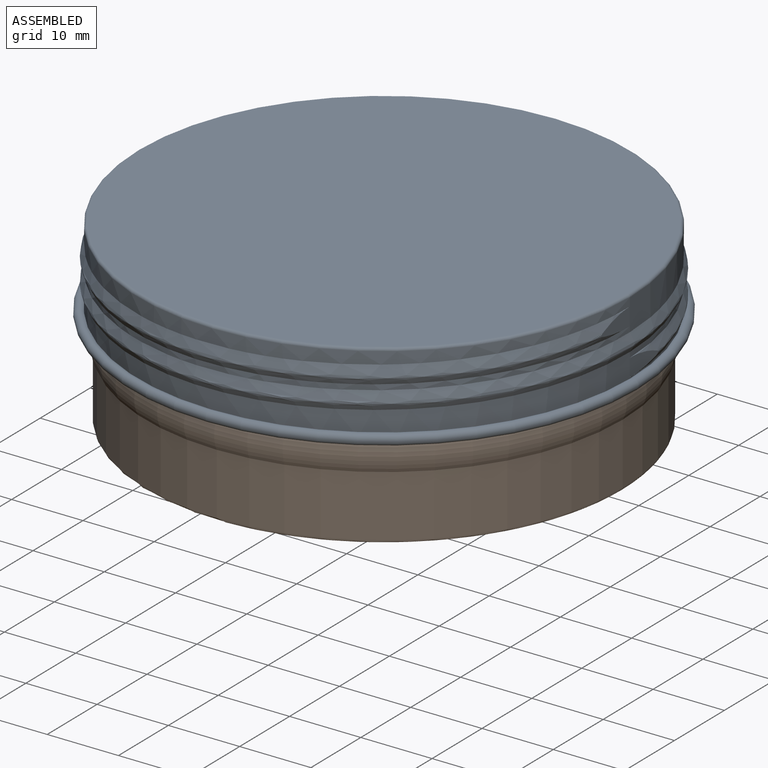
[diagram: assembled view]
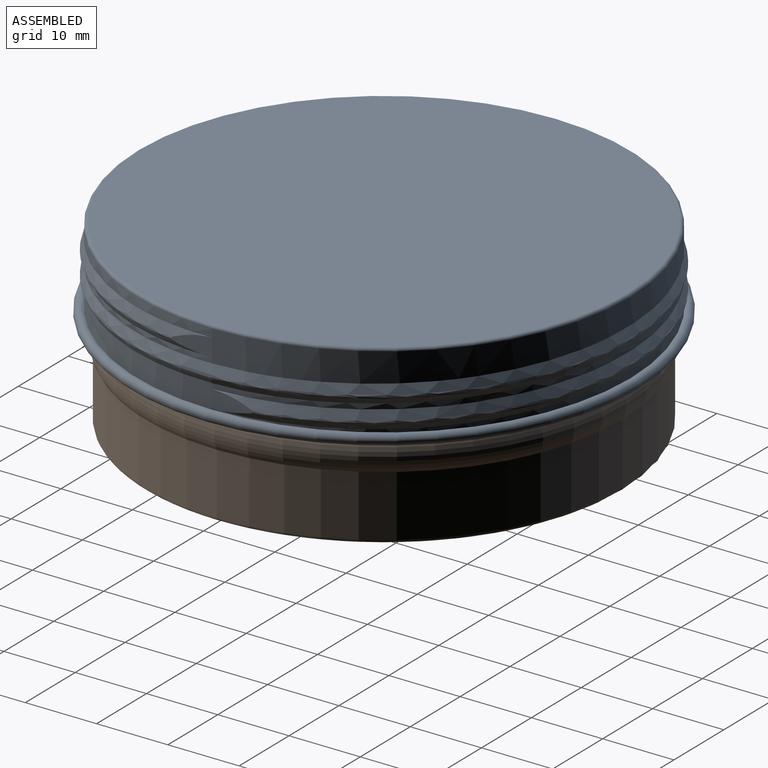
[diagram: assembled view, second angle]
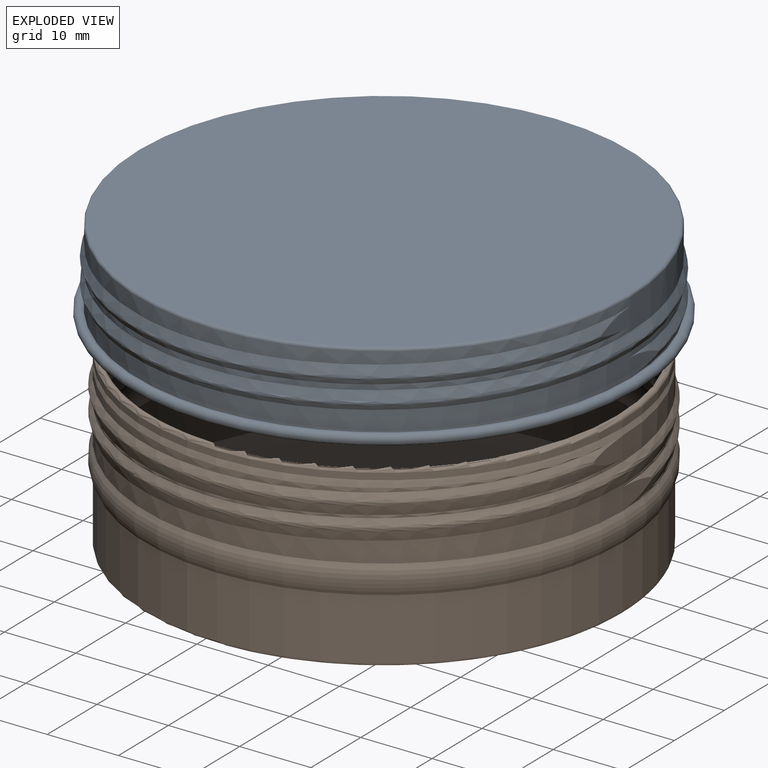
[diagram: exploded view]
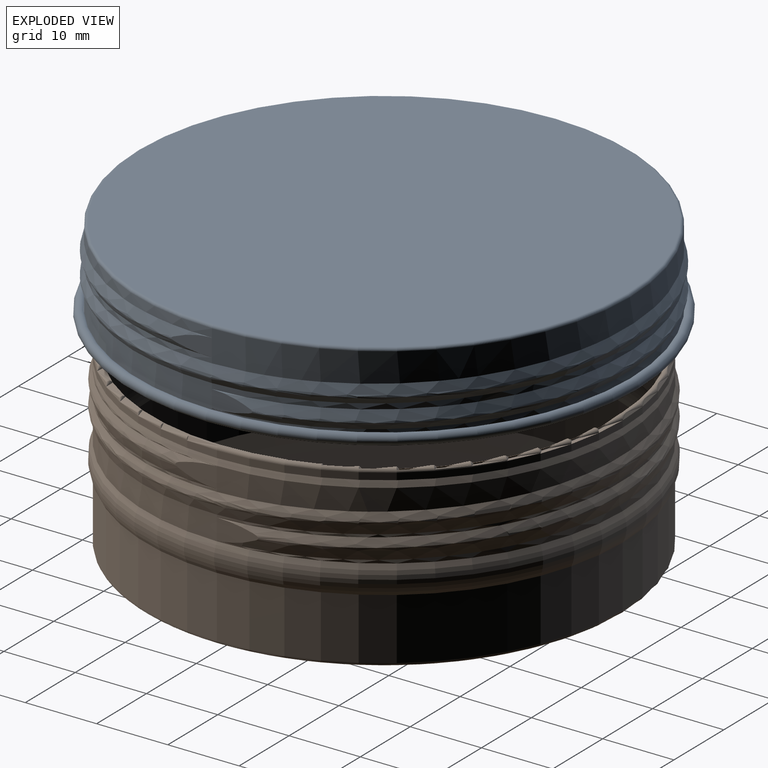
[diagram: exploded view, second angle]
ASSEMBLY  parts=2 mates=2
PART A: 24 faces, bbox 78.1x81.5x12 mm
  f0: plane 0.07x0.04mm, normal (0,1,0), area 0mm2, adj f3,f11,f21
  f1: bspline ~80.66x69.86mm, area 560.5mm2, adj f2,f10,f12,f20,f22
  f2: bspline ~80.81x69.98mm, area 260.8mm2, adj f1,f3,f20,f22
  f3: bspline ~80.53x69.74mm, area 333.5mm2, adj f0,f2,f11,f12,f20,f21,f22
  f4: cylinder r=34.25mm len=68.5mm, axis (0,0,1), area 623.6mm2, adj f6,f7,f15,f17
  f5: cylinder r=34.25mm len=68.5mm, axis (0,0,1), area 790mm2, adj f6,f14,f16,f18
  f6: cylinder r=34.25mm len=68.5mm, axis (0,0,1), area 445.2mm2, adj f4,f5,f15,f16
  f7: torus R=35mm, axis (0,0,1), area 882mm2, adj f4,f8
  f8: cone r=34.57mm half-angle=22.5deg, axis (0,0,1), area 54.4mm2, adj f7,f9
  f9: torus R=35.03mm, axis (0,0,1), area 639.9mm2, adj f8,f11
  f10: cylinder r=34.5mm len=69mm, axis (0,0,1), area 601.2mm2, adj f1,f12,f20,f23
  f11: cylinder r=34.5mm len=69mm, axis (0,0,1), area 504.3mm2, adj f0,f3,f9,f12,f22
  f12: cylinder r=34.5mm len=69mm, axis (0,0,1), area 162.6mm2, adj f1,f3,f10,f11
  f13: plane 68.2x68.2mm, normal (0,0,-1), area 3653.1mm2, adj f23
  f14: plane 68.5x68.5mm, normal (0,0,1), area 3685.3mm2, adj f5
  f15: bspline ~79.25x68.63mm, area 67.2mm2, adj f4,f6,f17,f18,f19
  f16: bspline ~79.41x68.77mm, area 194.9mm2, adj f5,f6,f17,f18,f19
  f17: plane 1.18x0.18mm, normal (0,-1,0), area 0.1mm2, adj f4,f15,f16,f19
  f18: plane 1.18x0.18mm, normal (0,1,0), area 0.1mm2, adj f5,f15,f16,f19
  f19: bspline ~79.56x68.9mm, area 273.2mm2, adj f15,f16,f17,f18
  f20: plane 6.39x3.21mm, normal (1,0,0), area 10mm2, adj f1,f2,f3,f10
  f21: plane 1.33x0.04mm, normal (0,0,-1), area 0mm2, adj f0,f3,f22
  f22: plane 6.38x3.14mm, normal (1,0,0), area 10mm2, adj f1,f2,f3,f11,f21
  f23: torus R=34.1mm, axis (0,0,1), area 135.6mm2, adj f10,f13
PART B: 36 faces, bbox 73.7x78.6x25.4 mm
  f0: bspline ~78.37x67.87mm, area 587.9mm2, adj f2,f19,f20,f26,f27
  f1: bspline ~78.25x67.77mm, area 340.3mm2, adj f2,f18,f19,f26,f27
  f2: bspline ~78.61x68.08mm, area 350.1mm2, adj f0,f1,f26,f27
  f3: plane 51.68x51.68mm, normal (0,0,1), area 2097.9mm2, adj f4
  f4: cone r=25.84mm half-angle=83.8deg, axis (0,0,-1), area 643.5mm2, adj f3,f5
  f5: cone r=29.52mm half-angle=84.3deg, axis (0,0,1), area 739.2mm2, adj f4,f6
  f6: cylinder r=33.25mm len=66.5mm, axis (0,0,1), area 1833.3mm2, adj f5,f7
  f7: torus R=30.06mm, axis (0,0,1), area 891mm2, adj f6,f8
  f8: cylinder r=33.25mm len=66.5mm, axis (0,0,1), area 516.5mm2, adj f7,f9,f29,f31
  f9: cylinder r=33.25mm len=66.5mm, axis (0,0,1), area 332.1mm2, adj f8,f10,f28,f31
  f10: cylinder r=33.25mm len=66.5mm, axis (0,0,1), area 458.2mm2, adj f9,f11,f28,f30
  f11: cone r=33.25mm half-angle=22.1deg, axis (0,0,-1), area 407.2mm2, adj f10,f12
  f12: torus R=33mm, axis (0,0,1), area 345.7mm2, adj f11,f13
  f13: cylinder r=33.5mm len=67mm, axis (0,0,1), area 197.2mm2, adj f12,f14
  f14: plane 67x67mm, normal (0,0,-1), area 52.4mm2, adj f13,f15
  f15: cylinder r=33.25mm len=66.5mm, axis (0,0,1), area 195.7mm2, adj f14,f16
  f16: torus R=33mm, axis (0,0,1), area 185.6mm2, adj f15,f17
  f17: cone r=33.5mm half-angle=22.1deg, axis (0,0,-1), area 411.3mm2, adj f16,f18
  f18: cylinder r=33.5mm len=67mm, axis (0,0,1), area 353.9mm2, adj f1,f17,f19,f27
  f19: cylinder r=33.5mm len=67mm, axis (0,0,1), area 77.9mm2, adj f0,f1,f18,f20
  f20: cylinder r=33.5mm len=67mm, axis (0,0,1), area 371.5mm2, adj f0,f19,f21,f26
  f21: torus R=30.04mm, axis (0,0,1), area 891mm2, adj f20,f22
  f22: cylinder r=33.5mm len=67mm, axis (0,0,1), area 1818.2mm2, adj f21,f33
  f23: cone r=29.52mm half-angle=84.3deg, axis (0,0,1), area 708.4mm2, adj f33,f34
  f24: cone r=25.84mm half-angle=83.8deg, axis (0,0,-1), area 632.2mm2, adj f34,f35
  f25: plane 51.64x51.64mm, normal (0,0,-1), area 2094.4mm2, adj f35
  f26: plane 5.81x2.88mm, normal (1,0,0), area 11.9mm2, adj f0,f1,f2,f20
  f27: plane 5.81x2.89mm, normal (1,0,0), area 11.9mm2, adj f0,f1,f2,f18
  f28: bspline ~77.1x66.77mm, area 127.9mm2, adj f9,f10,f29,f30,f32
  f29: plane 1.66x0.24mm, normal (0,1,0), area 0.2mm2, adj f8,f28,f31,f32
  f30: plane 1.66x0.24mm, normal (0,-1,0), area 0.2mm2, adj f10,f28,f31,f32
  f31: bspline ~77.27x66.92mm, area 308.1mm2, adj f8,f9,f29,f30,f32
  f32: bspline ~77.41x67.04mm, area 294.7mm2, adj f28,f29,f30,f31
  f33: torus R=33.1mm, axis (0,0,-1), area 123.3mm2, adj f22,f23
  f34: torus R=29.52mm, axis (0,0,-1), area 15.5mm2, adj f23,f24
  f35: torus R=25.82mm, axis (0,0,1), area 7mm2, adj f24,f25
PLACE A rot(axis=(1,0,0),180deg) t=(44.31,51.34,57.69)mm
PLACE B t=(44.31,51.34,32.13)mm
MATE parallel A.f4 <-> B.f4  axis (0,0,-1) through (44.31,51.34,57.44)mm
MATE cylindrical A.f4 <-> B.f4  axis (0,0,1) through (44.31,51.34,57.69)mm
